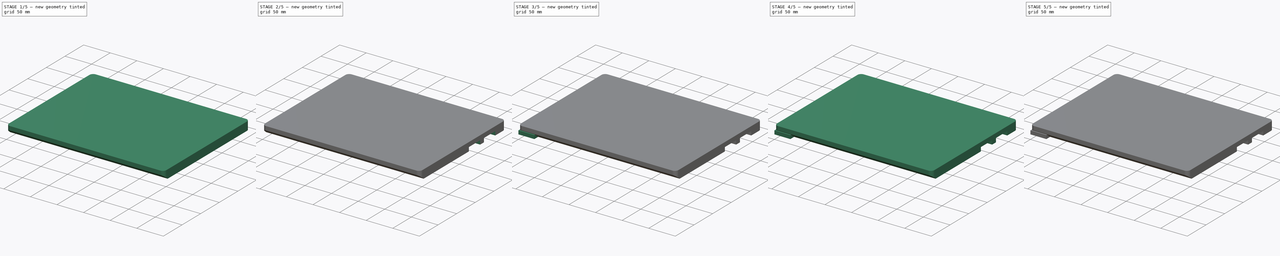
[diagram: build sequence overview — one tinted view per stage of 5, left to right]
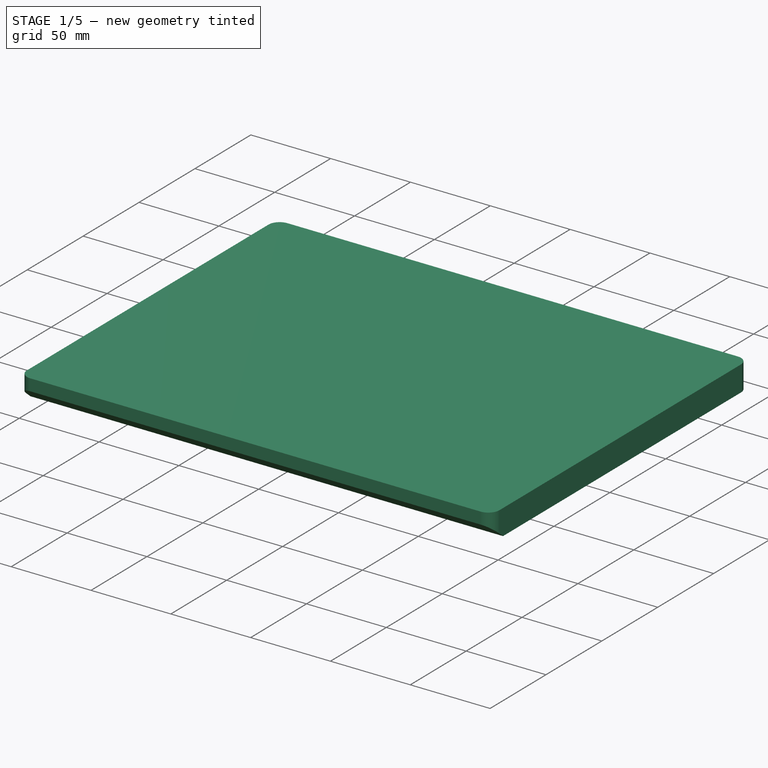
[diagram: stage 1 of 5 — iso view after this stage's code; geometry added in this stage tinted green]
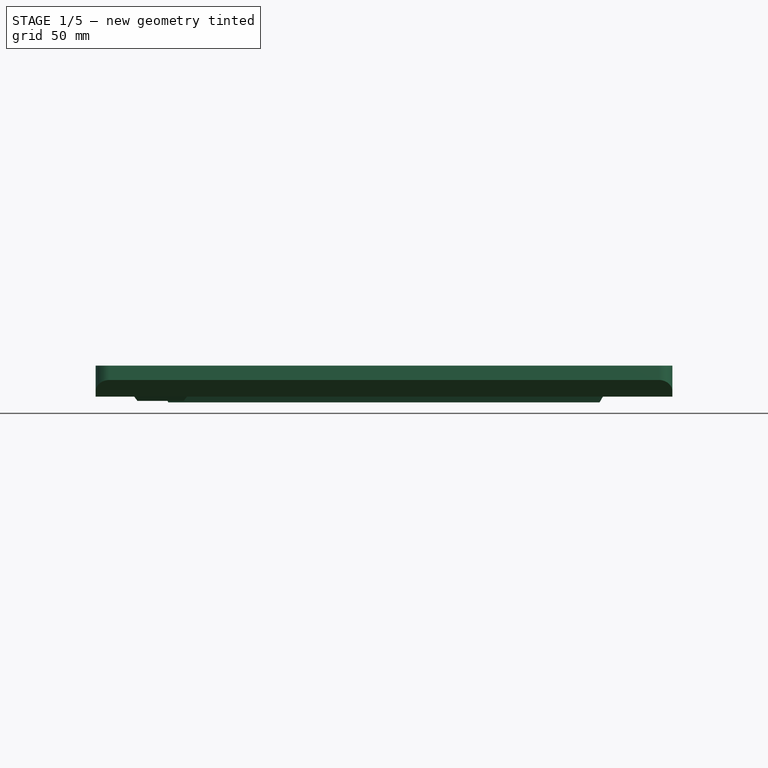
[diagram: stage 1 of 5 — front view after this stage's code; geometry added in this stage tinted green]
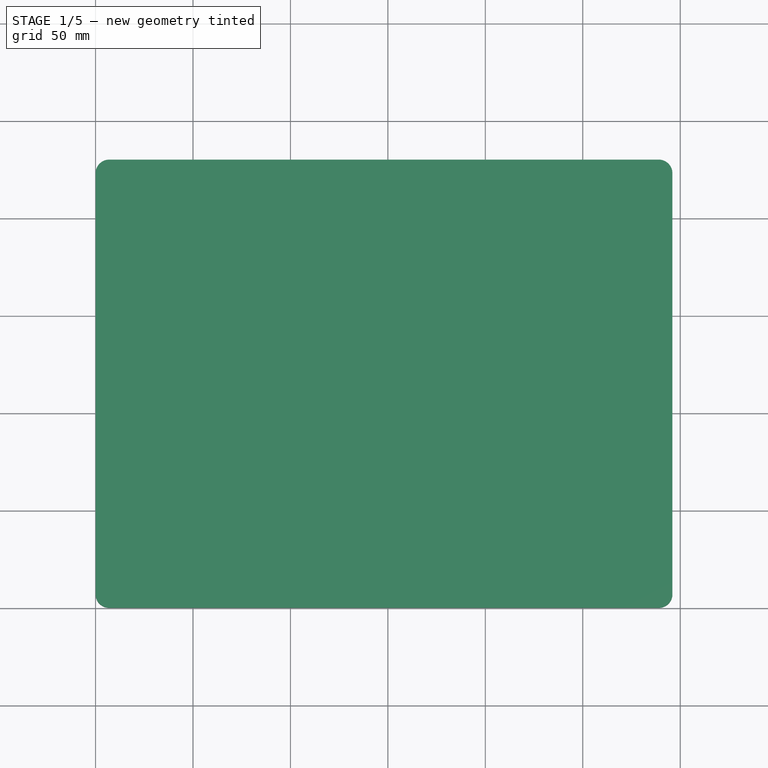
[diagram: stage 1 of 5 — top view after this stage's code; geometry added in this stage tinted green]
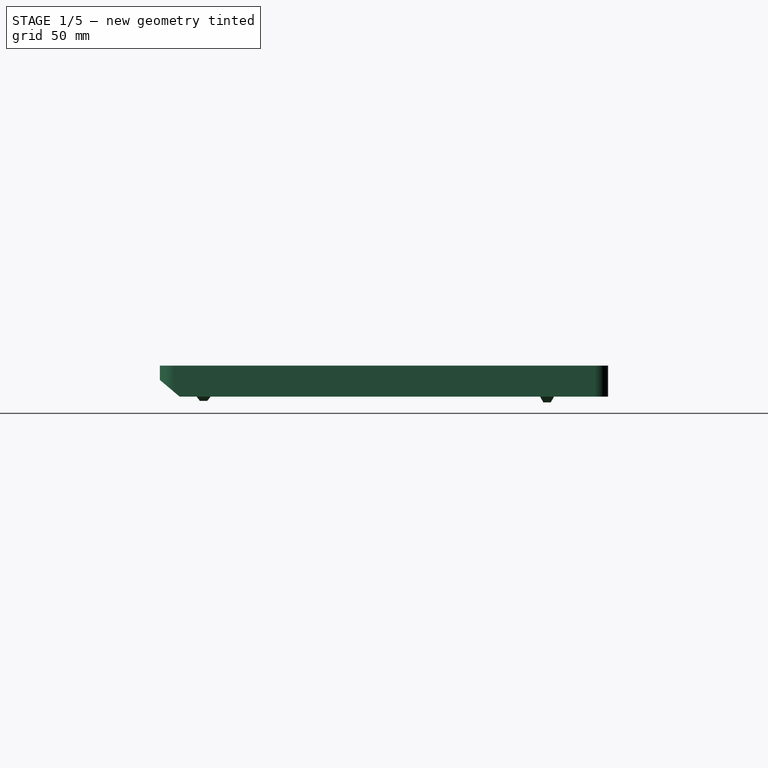
[diagram: stage 1 of 5 — right view after this stage's code; geometry added in this stage tinted green]
FCSTD DOCUMENT  (FreeCAD 0.20R29603 (Git))
Label: Framework laptop
License: Creative Commons Attribution-NonCommercial-ShareAlike
LicenseURL: http://creativecommons.org/licenses/by-nc-sa/4.0/
objects: Sketcher::SketchObject×22, PartDesign::Pad×8, PartDesign::Pocket×8, PartDesign::Body×7, PartDesign::Fillet×3, PartDesign::AdditiveLoft×3, PartDesign::LinearPattern×1
note: 74 computed .brp shape members not serialized (recipe doc carries the construction recipe); baked Part::Feature solids carry a one-line shape summary decoded from their .brp

FEATURE [Sketcher::SketchObject] Sketch
  FullyConstrained = true
  MapMode = 5
  Support = -> [XY_Plane]
  sketch-geometry (4):
    g0: LineSegment StartX=0 StartY=0 StartZ=0 EndX=296 EndY=0 EndZ=0
    g1: LineSegment StartX=296 StartY=0 StartZ=0 EndX=296 EndY=230 EndZ=0
    g2: LineSegment StartX=296 StartY=230 StartZ=0 EndX=0 EndY=230 EndZ=0
    g3: LineSegment StartX=0 StartY=230 StartZ=0 EndX=0 EndY=0 EndZ=0
  constraints (11):
    c: Coincident(g0,g1)
    c: Coincident(g1,g2)
    c: Coincident(g2,g3)
    c: Coincident(g3,g0)
    c: Horizontal(g0)
    c: Horizontal(g2)
    c: Vertical(g1)
    c: Vertical(g3)
    c: Coincident(g0,g-1)
    c: DistanceX(g0,g0) = 296  'Width'
    c: DistanceY(g1,g1) = 230  'Depth'
FEATURE [PartDesign::Pad] Pad
  Direction = (0,0,1)
  Length = 15.88
  Length2 = 10
  Profile = -> Sketch
  ReferenceAxis = -> Sketch [N_Axis]
  Type = 0
FEATURE [PartDesign::Fillet] Fillet
  Base = -> Pad [Edge5,Edge2,Edge1,Edge8]
  BaseFeature = -> Pad
  Radius = 7
  SupportTransform = false
  UseAllEdges = false
FEATURE [Sketcher::SketchObject] Sketch001
  FullyConstrained = true
  MapMode = 5
  Placement = pos=(0,0,0) rot=(0.57735,-0.57735,-0.57735;2.0944rad)
  Support = -> [Fillet]
  sketch-geometry (3):
    g0: LineSegment StartX=0 StartY=0 StartZ=0 EndX=-10.11 EndY=0 EndZ=0
    g1: LineSegment StartX=-10.11 StartY=0 StartZ=0 EndX=0 EndY=8.53 EndZ=0
    g2: LineSegment StartX=0 StartY=8.53 StartZ=0 EndX=0 EndY=0 EndZ=0
  constraints (8):
    c: Coincident(g-1,g0)
    c: PointOnObject(g0,g-1)
    c: Coincident(g0,g1)
    c: PointOnObject(g1,g-2)
    c: Coincident(g1,g2)
    c: Coincident(g2,g0)
    c: DistanceY(g2,g2) = 8.53
    c: DistanceX(g0,g0) = 10.11
FEATURE [PartDesign::Pocket] Pocket
  BaseFeature = -> Fillet
  Direction = (1,0,0)
  Length = 296
  Length2 = 5
  Profile = -> Sketch001
  ReferenceAxis = -> Sketch001 [N_Axis]
  Type = 0
FEATURE [Sketcher::SketchObject] Sketch002
  ExternalGeometry = -> [Pocket]
  FullyConstrained = true
  MapMode = 5
  Placement = pos=(0,0,0) rot=(1,0,0;3.14159rad)
  Support = -> [Pocket]
  sketch-geometry (4):
    g0: LineSegment StartX=35.67 StartY=-195.08 StartZ=0 EndX=260.33 EndY=-195.08 EndZ=0
    g1: LineSegment StartX=260.33 StartY=-195.08 StartZ=0 EndX=260.33 EndY=-202.26 EndZ=0
    g2: LineSegment StartX=260.33 StartY=-202.26 StartZ=0 EndX=35.67 EndY=-202.26 EndZ=0
    g3: LineSegment StartX=35.67 StartY=-202.26 StartZ=0 EndX=35.67 EndY=-195.08 EndZ=0
  constraints (12):
    c: Coincident(g0,g1)
    c: Coincident(g1,g2)
    c: Coincident(g2,g3)
    c: Coincident(g3,g0)
    c: Horizontal(g0)
    c: Horizontal(g2)
    c: Vertical(g1)
    c: Vertical(g3)
    c: DistanceX(g-1,g0) = 35.67
    c: DistanceX(g1,g-3) = 35.67
    c: DistanceY(g3,g3) = 7.18
    c: DistanceY(g-4,g2) = 27.74
FEATURE [Sketcher::SketchObject] Sketch003
  FullyConstrained = true
  MapMode = 5
  Placement = pos=(0,0,0) rot=(1,0,0;3.14159rad)
  Support = -> [Pocket]
  sketch-geometry (4):
    g0: LineSegment StartX=19.81 StartY=-18.83 StartZ=0 EndX=46.91 EndY=-18.83 EndZ=0
    g1: LineSegment StartX=46.91 StartY=-18.83 StartZ=0 EndX=46.91 EndY=-26.01 EndZ=0
    g2: LineSegment StartX=46.91 StartY=-26.01 StartZ=0 EndX=19.81 EndY=-26.01 EndZ=0
    g3: LineSegment StartX=19.81 StartY=-26.01 StartZ=0 EndX=19.81 EndY=-18.83 EndZ=0
  constraints (12):
    c: Coincident(g0,g1)
    c: Coincident(g1,g2)
    c: Coincident(g2,g3)
    c: Coincident(g3,g0)
    c: Horizontal(g0)
    c: Horizontal(g2)
    c: Vertical(g1)
    c: Vertical(g3)
    c: DistanceX(g2,g2) = 27.1
    c: DistanceX(g-1,g0) = 19.81
    c: DistanceY(g1,g1) = 7.18
    c: DistanceY(g0,g-1) = 18.83
FEATURE [Sketcher::SketchObject] Sketch004
  AttachmentOffset = pos=(0,0,2.21) rot=(0,0,1;0rad)
  ExternalGeometry = -> [Sketch003]
  FullyConstrained = true
  MapMode = 5
  Placement = pos=(0,0,-2.21) rot=(1,0,0;3.14159rad)
  Support = -> [Pocket]
  sketch-geometry (8):
    g0: LineSegment StartX=21.51 StartY=-20.53 StartZ=0 EndX=45.21 EndY=-20.53 EndZ=0
    g1: LineSegment StartX=45.21 StartY=-20.53 StartZ=0 EndX=45.21 EndY=-24.31 EndZ=0
    g2: LineSegment StartX=45.21 StartY=-24.31 StartZ=0 EndX=21.51 EndY=-24.31 EndZ=0
    g3: LineSegment StartX=21.51 StartY=-24.31 StartZ=0 EndX=21.51 EndY=-20.53 EndZ=0
    g4: LineSegment StartX=21.51 StartY=-20.53 StartZ=0 EndX=21.51 EndY=-18.83 EndZ=0
    g5: LineSegment StartX=21.51 StartY=-20.53 StartZ=0 EndX=19.81 EndY=-20.53 EndZ=0
    g6: LineSegment StartX=21.51 StartY=-24.31 StartZ=0 EndX=21.51 EndY=-26.01 EndZ=0
    g7: LineSegment StartX=45.21 StartY=-24.31 StartZ=0 EndX=46.91 EndY=-24.31 EndZ=0
  constraints (24):
    c: Coincident(g0,g1)
    c: Coincident(g1,g2)
    c: Coincident(g2,g3)
    c: Coincident(g3,g0)
    c: Horizontal(g0)
    c: Horizontal(g2)
    c: Vertical(g1)
    c: Vertical(g3)
    c: Coincident(g4,g0)
    c: PointOnObject(g4,g-4)
    c: Vertical(g4)
    c: Coincident(g5,g0)
    c: PointOnObject(g5,g-3)
    c: Horizontal(g5)
    c: Coincident(g6,g2)
    c: PointOnObject(g6,g-6)
    c: Vertical(g6)
    c: Coincident(g7,g1)
    c: PointOnObject(g7,g-5)
    c: Horizontal(g7)
    c: DistanceY(g6,g6) = 1.7
    c: Equal(g6,g5)
    c: Equal(g5,g4)
    c: Equal(g4,g7)
FEATURE [PartDesign::AdditiveLoft] AdditiveLoft  label="Front left foot"
  BaseFeature = -> Pocket
  Closed = false
  Profile = -> Sketch003
  Ruled = false
  Sections = -> [Sketch004]
FEATURE [Sketcher::SketchObject] Sketch005
  AttachmentOffset = pos=(0,0,2.95) rot=(0,0,1;0rad)
  ExternalGeometry = -> [Sketch002]
  FullyConstrained = true
  MapMode = 5
  Placement = pos=(0,0,-2.95) rot=(1,0,0;3.14159rad)
  Support = -> [AdditiveLoft]
  sketch-geometry (8):
    g0: LineSegment StartX=37.37 StartY=-196.78 StartZ=0 EndX=258.63 EndY=-196.78 EndZ=0
    g1: LineSegment StartX=258.63 StartY=-196.78 StartZ=0 EndX=258.63 EndY=-200.56 EndZ=0
    g2: LineSegment StartX=258.63 StartY=-200.56 StartZ=0 EndX=37.37 EndY=-200.56 EndZ=0
    g3: LineSegment StartX=37.37 StartY=-200.56 StartZ=0 EndX=37.37 EndY=-196.78 EndZ=0
    g4: LineSegment StartX=37.37 StartY=-196.78 StartZ=0 EndX=37.37 EndY=-195.08 EndZ=0
    g5: LineSegment StartX=37.37 StartY=-196.78 StartZ=0 EndX=35.67 EndY=-196.78 EndZ=0
    g6: LineSegment StartX=37.37 StartY=-200.56 StartZ=0 EndX=37.37 EndY=-202.26 EndZ=0
    g7: LineSegment StartX=258.63 StartY=-200.56 StartZ=0 EndX=260.33 EndY=-200.56 EndZ=0
  constraints (24):
    c: Coincident(g0,g1)
    c: Coincident(g1,g2)
    c: Coincident(g2,g3)
    c: Coincident(g3,g0)
    c: Horizontal(g0)
    c: Horizontal(g2)
    c: Vertical(g1)
    c: Vertical(g3)
    c: Coincident(g4,g0)
    c: PointOnObject(g4,g-4)
    c: Vertical(g4)
    c: Coincident(g5,g0)
    c: PointOnObject(g5,g-3)
    c: Horizontal(g5)
    c: Coincident(g6,g2)
    c: PointOnObject(g6,g-5)
    c: Vertical(g6)
    c: Coincident(g7,g1)
    c: PointOnObject(g7,g-6)
    c: Horizontal(g7)
    c: Equal(g6,g5)
    c: Equal(g5,g4)
    c: Equal(g7,g4)
    c: DistanceX(g5,g5) = 1.7
FEATURE [PartDesign::AdditiveLoft] AdditiveLoft001  label="Back foot"
  BaseFeature = -> AdditiveLoft
  Closed = false
  Profile = -> Sketch002
  Ruled = false
  Sections = -> [Sketch005]
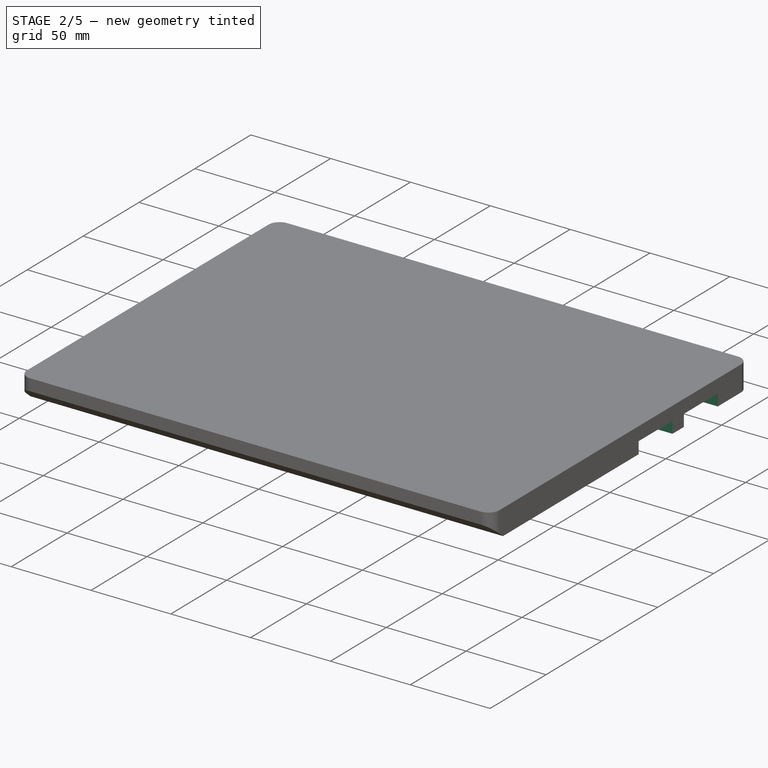
[diagram: stage 2 of 5 — iso view after this stage's code; geometry added in this stage tinted green]
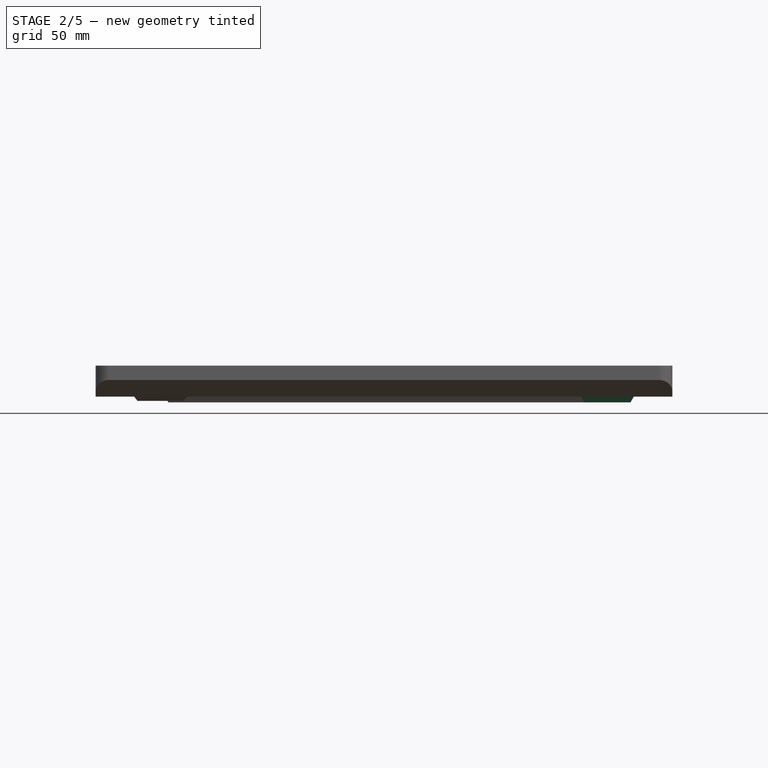
[diagram: stage 2 of 5 — front view after this stage's code; geometry added in this stage tinted green]
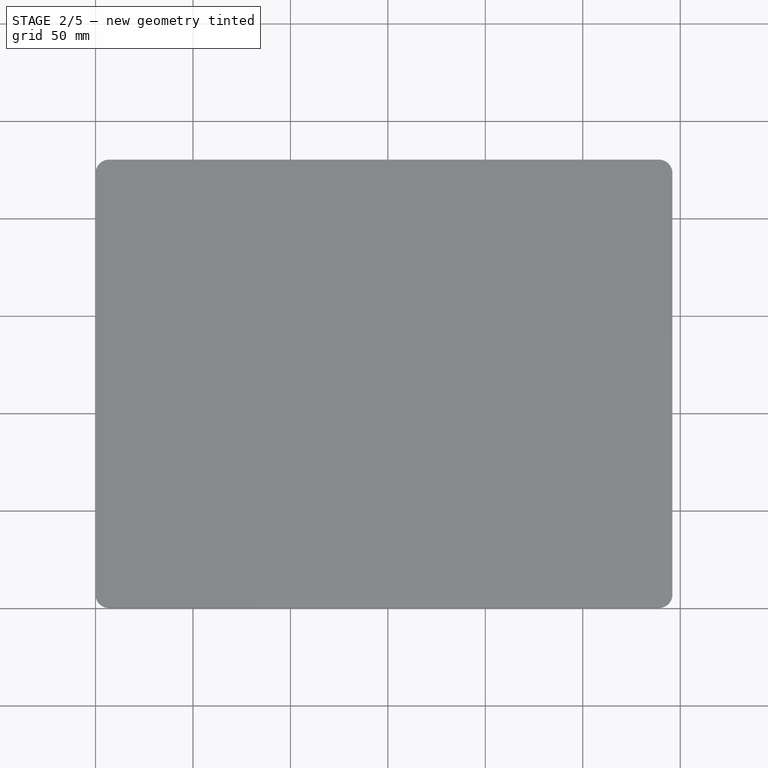
[diagram: stage 2 of 5 — top view after this stage's code; geometry added in this stage tinted green]
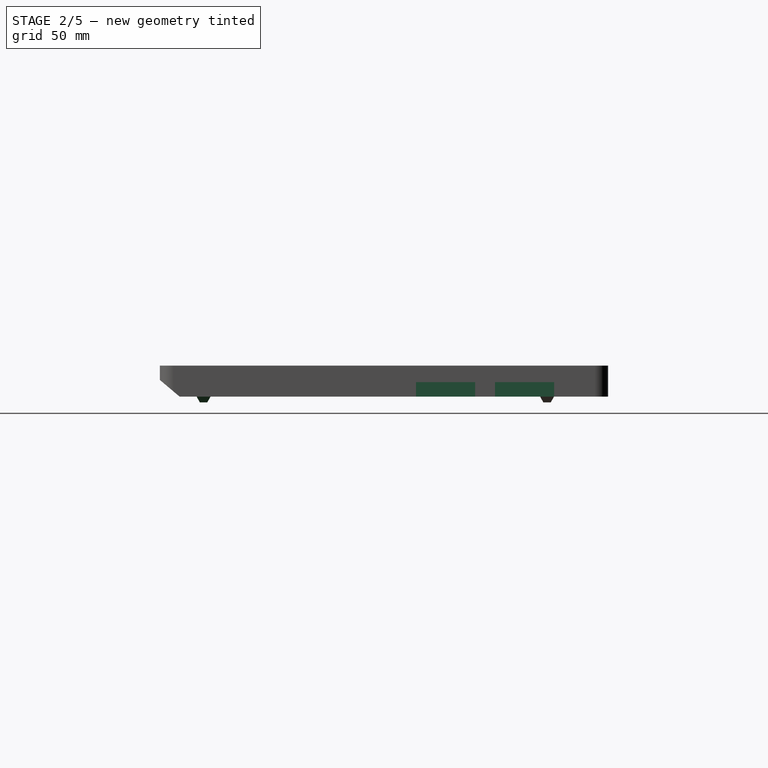
[diagram: stage 2 of 5 — right view after this stage's code; geometry added in this stage tinted green]
FEATURE [Sketcher::SketchObject] Sketch006
  ExternalGeometry = -> [AdditiveLoft001]
  FullyConstrained = true
  MapMode = 5
  Placement = pos=(0,0,0) rot=(1,0,0;3.14159rad)
  Support = -> [AdditiveLoft001]
  sketch-geometry (4):
    g0: LineSegment StartX=249.09 StartY=-18.83 StartZ=0 EndX=276.19 EndY=-18.83 EndZ=0
    g1: LineSegment StartX=276.19 StartY=-18.83 StartZ=0 EndX=276.19 EndY=-26.01 EndZ=0
    g2: LineSegment StartX=276.19 StartY=-26.01 StartZ=0 EndX=249.09 EndY=-26.01 EndZ=0
    g3: LineSegment StartX=249.09 StartY=-26.01 StartZ=0 EndX=249.09 EndY=-18.83 EndZ=0
  constraints (12):
    c: Coincident(g0,g1)
    c: Coincident(g1,g2)
    c: Coincident(g2,g3)
    c: Coincident(g3,g0)
    c: Horizontal(g0)
    c: Horizontal(g2)
    c: Vertical(g1)
    c: Vertical(g3)
    c: DistanceX(g0,g-3) = 19.81
    c: DistanceX(g2,g2) = 27.1
    c: DistanceY(g0,g-1) = 18.83
    c: DistanceY(g3,g3) = 7.18
FEATURE [Sketcher::SketchObject] Sketch007
  AttachmentOffset = pos=(0,0,2.95) rot=(0,0,1;0rad)
  ExternalGeometry = -> [Sketch006]
  FullyConstrained = true
  MapMode = 5
  Placement = pos=(0,0,-2.95) rot=(1,0,0;3.14159rad)
  Support = -> [AdditiveLoft001]
  sketch-geometry (8):
    g0: LineSegment StartX=250.79 StartY=-20.53 StartZ=0 EndX=274.49 EndY=-20.53 EndZ=0
    g1: LineSegment StartX=274.49 StartY=-20.53 StartZ=0 EndX=274.49 EndY=-24.31 EndZ=0
    g2: LineSegment StartX=274.49 StartY=-24.31 StartZ=0 EndX=250.79 EndY=-24.31 EndZ=0
    g3: LineSegment StartX=250.79 StartY=-24.31 StartZ=0 EndX=250.79 EndY=-20.53 EndZ=0
    g4: LineSegment StartX=250.79 StartY=-20.53 StartZ=0 EndX=249.09 EndY=-20.53 EndZ=0
    g5: LineSegment StartX=250.79 StartY=-20.53 StartZ=0 EndX=250.79 EndY=-18.83 EndZ=0
    g6: LineSegment StartX=250.79 StartY=-24.31 StartZ=0 EndX=250.79 EndY=-26.01 EndZ=0
    g7: LineSegment StartX=274.49 StartY=-24.31 StartZ=0 EndX=276.19 EndY=-24.31 EndZ=0
  constraints (24):
    c: Coincident(g0,g1)
    c: Coincident(g1,g2)
    c: Coincident(g2,g3)
    c: Coincident(g3,g0)
    c: Horizontal(g0)
    c: Horizontal(g2)
    c: Vertical(g1)
    c: Vertical(g3)
    c: Coincident(g4,g0)
    c: PointOnObject(g4,g-3)
    c: Horizontal(g4)
    c: Coincident(g5,g0)
    c: PointOnObject(g5,g-4)
    c: Vertical(g5)
    c: Coincident(g6,g2)
    c: PointOnObject(g6,g-6)
    c: Vertical(g6)
    c: Coincident(g7,g1)
    c: PointOnObject(g7,g-5)
    c: Horizontal(g7)
    c: Equal(g5,g4)
    c: Equal(g4,g6)
    c: Equal(g6,g7)
    c: DistanceY(g5,g5) = 1.7
FEATURE [PartDesign::AdditiveLoft] AdditiveLoft002  label="Front right foot"
  BaseFeature = -> AdditiveLoft001
  Closed = false
  Profile = -> Sketch006
  Ruled = false
  Sections = -> [Sketch007]
FEATURE [PartDesign::Body] Body002  label="Bezel"
  Group = -> [Sketch009,Pad002,Fillet002]
  Origin = -> Origin002
  Tip = -> Fillet002
FEATURE [Sketcher::SketchObject] Sketch010
  ExternalGeometry = -> [AdditiveLoft002]
  FullyConstrained = true
  MapMode = 5
  Placement = pos=(0,0,0) rot=(1,0,0;3.14159rad)
  Support = -> [AdditiveLoft002]
  sketch-geometry (9):
    g0: LineSegment StartX=64.56 StartY=-153.62 StartZ=0 EndX=65.45 EndY=-153.62 EndZ=0
    g1: LineSegment StartX=65.45 StartY=-153.62 StartZ=0 EndX=65.45 EndY=-166.08 EndZ=0
    g2: LineSegment StartX=65.45 StartY=-166.08 StartZ=0 EndX=64.56 EndY=-166.08 EndZ=0
    g3: LineSegment StartX=64.56 StartY=-166.08 StartZ=0 EndX=64.56 EndY=-153.62 EndZ=0
    g4: LineSegment StartX=65.45 StartY=-166.08 StartZ=0 EndX=65.45 EndY=-168.08 EndZ=0
    g5: LineSegment StartX=65.45 StartY=-168.08 StartZ=0 EndX=64.56 EndY=-168.08 EndZ=0
    g6: LineSegment StartX=64.56 StartY=-168.08 StartZ=0 EndX=64.56 EndY=-180.54 EndZ=0
    g7: LineSegment StartX=64.56 StartY=-180.54 StartZ=0 EndX=65.45 EndY=-180.54 EndZ=0
    g8: LineSegment StartX=65.45 StartY=-180.54 StartZ=0 EndX=65.45 EndY=-168.08 EndZ=0
  constraints (26):
    c: Coincident(g0,g1)
    c: Coincident(g1,g2)
    c: Coincident(g2,g3)
    c: Coincident(g3,g0)
    c: Horizontal(g0)
    c: Horizontal(g2)
    c: Vertical(g1)
    c: Vertical(g3)
    c: DistanceX(g-1,g0) = 64.56
    c: DistanceX(g0,g0) = 0.89
    c: DistanceY(g3,g3) = 12.46
    c: DistanceY(g-3,g0) = 76.38
    c: Coincident(g4,g1)
    c: Vertical(g4)
    c: DistanceY(g4,g4) = 2
    c: Coincident(g5,g6)
    c: Coincident(g6,g7)
    c: Coincident(g7,g8)
    c: Coincident(g8,g5)
    c: Horizontal(g5)
    c: Horizontal(g7)
    c: Vertical(g6)
    c: Vertical(g8)
    c: Coincident(g5,g4)
    c: Equal(g5,g0)
    c: Equal(g8,g3)
FEATURE [PartDesign::Pocket] Pocket001
  BaseFeature = -> AdditiveLoft002
  Direction = (0,0,1)
  Length = 3
  Length2 = 5
  Profile = -> Sketch010
  ReferenceAxis = -> Sketch010 [N_Axis]
  Type = 0
FEATURE [PartDesign::LinearPattern] LinearPattern  label="Grille"
  BaseFeature = -> Pocket001
  Direction = -> Sketch010 [H_Axis]
  Length = 166
  Occurrences = 70
  Originals = -> [Pocket001]
FEATURE [Sketcher::SketchObject] Sketch012
  ExternalGeometry = -> [LinearPattern]
  FullyConstrained = true
  MapMode = 5
  Placement = pos=(0,0,0) rot=(1,0,0;3.14159rad)
  Support = -> [LinearPattern]
  sketch-geometry (19):
    g0: LineSegment StartX=0 StartY=-202.28 StartZ=0 EndX=31.82 EndY=-202.28 EndZ=0
    g1: LineSegment StartX=31.82 StartY=-202.28 StartZ=0 EndX=31.82 EndY=-171.95 EndZ=0
    g2: LineSegment StartX=31.82 StartY=-171.95 StartZ=0 EndX=0 EndY=-171.95 EndZ=0
    g3: LineSegment StartX=0 StartY=-171.95 StartZ=0 EndX=0 EndY=-202.28 EndZ=0
    g4: LineSegment StartX=0 StartY=-171.95 StartZ=0 EndX=0 EndY=-161.73 EndZ=0
    g5: LineSegment StartX=0 StartY=-161.73 StartZ=0 EndX=31.82 EndY=-161.73 EndZ=0
    g6: LineSegment StartX=31.82 StartY=-161.73 StartZ=0 EndX=31.82 EndY=-131.4 EndZ=0
    g7: LineSegment StartX=31.82 StartY=-131.4 StartZ=0 EndX=0 EndY=-131.4 EndZ=0
    g8: LineSegment StartX=0 StartY=-131.4 StartZ=0 EndX=0 EndY=-161.73 EndZ=0
    g9: LineSegment StartX=31.82 StartY=-202.28 StartZ=0 EndX=264.18 EndY=-202.28 EndZ=0
    g10: LineSegment StartX=264.18 StartY=-202.28 StartZ=0 EndX=296 EndY=-202.28 EndZ=0
    g11: LineSegment StartX=296 StartY=-202.28 StartZ=0 EndX=296 EndY=-171.95 EndZ=0
    g12: LineSegment StartX=296 StartY=-171.95 StartZ=0 EndX=264.18 EndY=-171.95 EndZ=0
    g13: LineSegment StartX=264.18 StartY=-171.95 StartZ=0 EndX=264.18 EndY=-202.28 EndZ=0
    g14: LineSegment StartX=31.82 StartY=-131.4 StartZ=0 EndX=264.18 EndY=-131.4 EndZ=0
    g15: LineSegment StartX=264.18 StartY=-131.4 StartZ=0 EndX=296 EndY=-131.4 EndZ=0
    g16: LineSegment StartX=296 StartY=-131.4 StartZ=0 EndX=296 EndY=-161.73 EndZ=0
    g17: LineSegment StartX=296 StartY=-161.73 StartZ=0 EndX=264.18 EndY=-161.73 EndZ=0
    g18: LineSegment StartX=264.18 StartY=-161.73 StartZ=0 EndX=264.18 EndY=-131.4 EndZ=0
  constraints (54):
    c: Coincident(g0,g1)
    c: Coincident(g1,g2)
    c: Coincident(g2,g3)
    c: Coincident(g3,g0)
    c: Horizontal(g0)
    c: Horizontal(g2)
    c: Vertical(g1)
    c: Vertical(g3)
    c: PointOnObject(g0,g-2)
    c: DistanceY(g-3,g0) = 27.72
    c: DistanceY(g3,g3) = 30.33
    c: DistanceX(g0,g0) = 31.82
    c: Coincident(g4,g2)
    c: PointOnObject(g4,g-2)
    c: DistanceY(g2,g4) = 10.22
    c: Coincident(g5,g6)
    c: Coincident(g6,g7)
    c: Coincident(g7,g8)
    c: Coincident(g8,g5)
    c: Horizontal(g5)
    c: Horizontal(g7)
    c: Vertical(g6)
    c: Vertical(g8)
    c: Coincident(g5,g4)
    c: Equal(g0,g5)
    c: Equal(g3,g8)
    c: Coincident(g9,g0)
    c: Horizontal(g9)
    c: Coincident(g10,g11)
    c: Coincident(g11,g12)
    c: Coincident(g12,g13)
    c: Coincident(g13,g10)
    c: Horizontal(g10)
    c: Horizontal(g12)
    c: Vertical(g11)
    c: Vertical(g13)
    c: Coincident(g10,g9)
    c: Equal(g10,g0)
    c: Equal(g13,g3)
    c: PointOnObject(g10,g-4)
    c: Coincident(g14,g6)
    c: Horizontal(g14)
    c: Coincident(g15,g16)
    c: Coincident(g16,g17)
    c: Coincident(g17,g18)
    c: Coincident(g18,g15)
    c: Horizontal(g15)
    c: Horizontal(g17)
    c: Vertical(g16)
    c: Vertical(g18)
    c: Coincident(g15,g14)
    c: PointOnObject(g16,g-4)
    c: Equal(g17,g0)
    c: Equal(g18,g3)
FEATURE [PartDesign::Pocket] Pocket002  label="Expansion card slots"
  BaseFeature = -> LinearPattern
  Direction = (0,0,1)
  Length = 7.4
  Length2 = 5
  Profile = -> Sketch012
  ReferenceAxis = -> Sketch012 [N_Axis]
  Type = 0
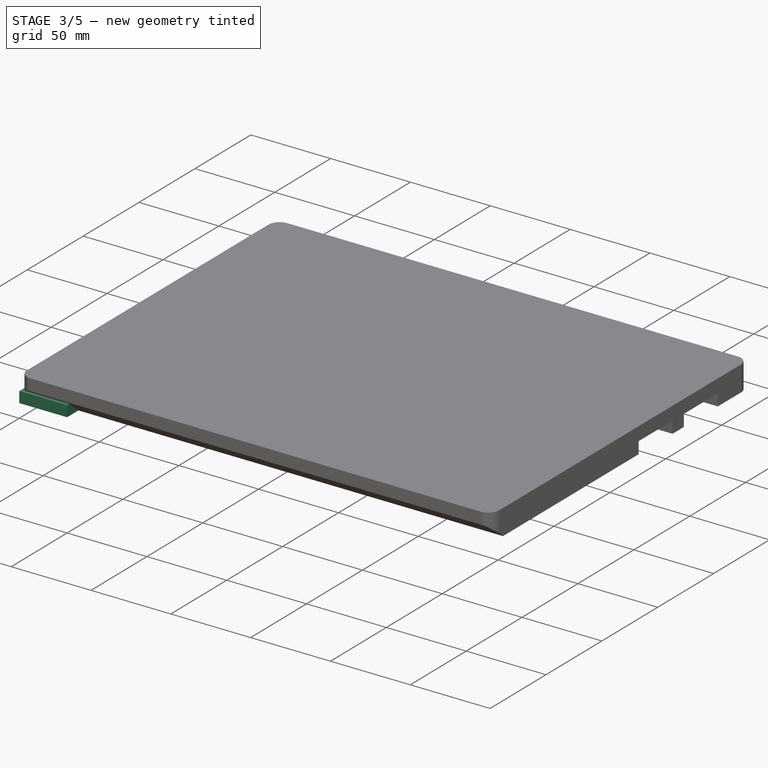
[diagram: stage 3 of 5 — iso view after this stage's code; geometry added in this stage tinted green]
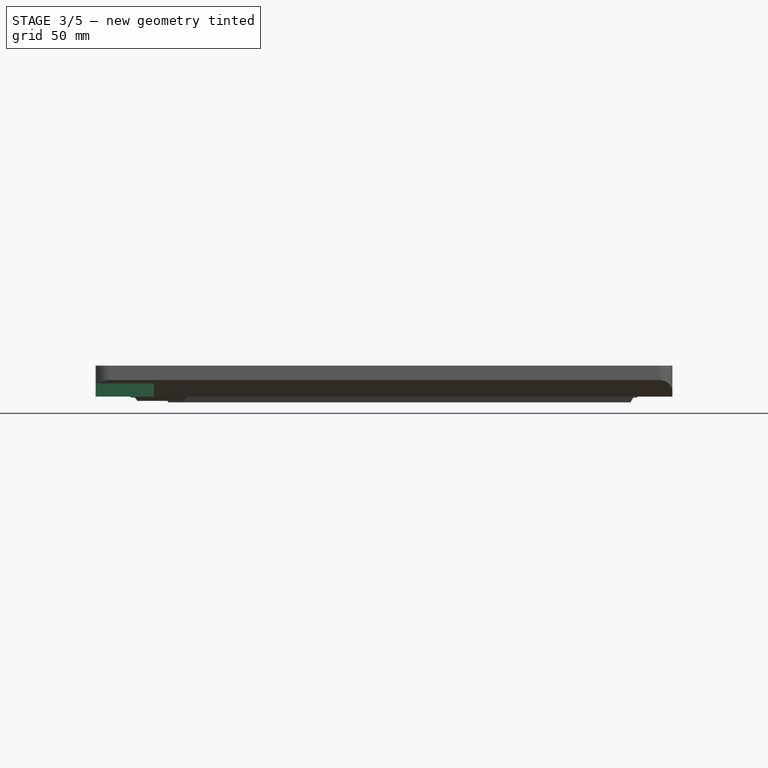
[diagram: stage 3 of 5 — front view after this stage's code; geometry added in this stage tinted green]
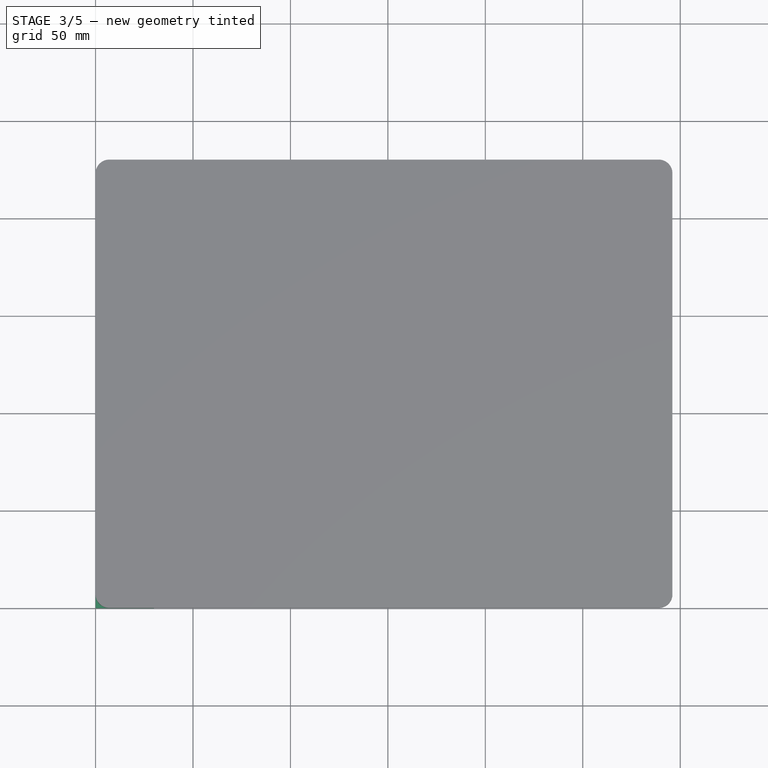
[diagram: stage 3 of 5 — top view after this stage's code; geometry added in this stage tinted green]
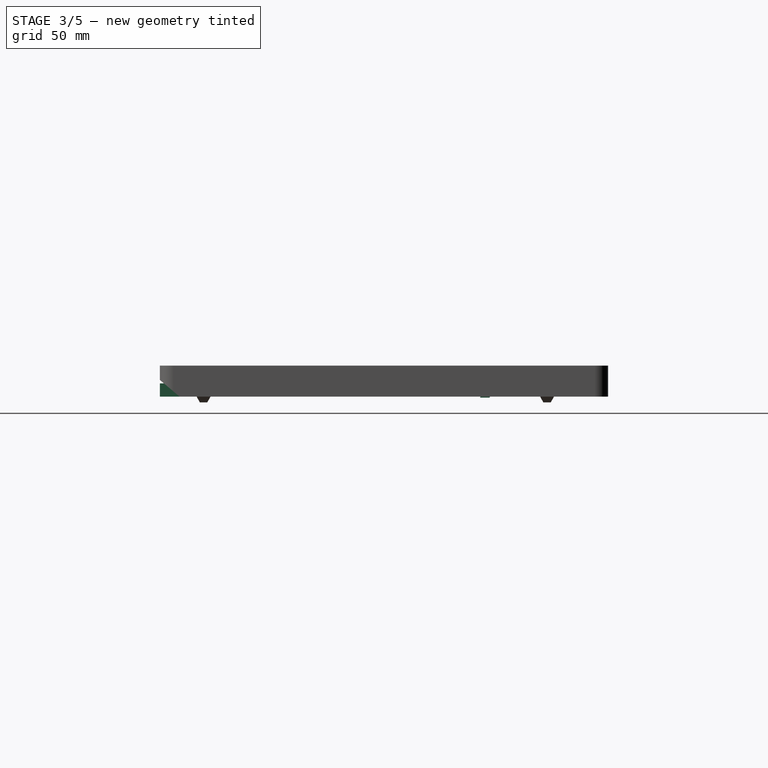
[diagram: stage 3 of 5 — right view after this stage's code; geometry added in this stage tinted green]
FEATURE [PartDesign::Body] Body004  label="Expansion card 2"
  Group = -> [Sketch015,Pad004,Sketch016,Pocket004]
  Origin = -> Origin004
  Placement = pos=(0,131.55,6.8) rot=(0.707107,0.707107,0;3.14159rad)
  Tip = -> Pocket004
FEATURE [Sketcher::SketchObject] Sketch017
  FullyConstrained = true
  MapMode = 5
  Support = -> [XY_Plane005]
  sketch-geometry (4):
    g0: LineSegment StartX=0 StartY=0 StartZ=0 EndX=30 EndY=0 EndZ=0
    g1: LineSegment StartX=30 StartY=0 StartZ=0 EndX=30 EndY=32 EndZ=0
    g2: LineSegment StartX=30 StartY=32 StartZ=0 EndX=0 EndY=32 EndZ=0
    g3: LineSegment StartX=0 StartY=32 StartZ=0 EndX=0 EndY=0 EndZ=0
  constraints (11):
    c: Coincident(g0,g1)
    c: Coincident(g1,g2)
    c: Coincident(g2,g3)
    c: Coincident(g3,g0)
    c: Horizontal(g0)
    c: Horizontal(g2)
    c: Vertical(g1)
    c: Vertical(g3)
    c: Coincident(g0,g-1)
    c: DistanceX(g0,g0) = 30
    c: DistanceY(g1,g1) = 32
FEATURE [PartDesign::Pad] Pad005
  Direction = (0,0,1)
  Length = 6.8
  Length2 = 10
  Profile = -> Sketch017
  ReferenceAxis = -> Sketch017 [N_Axis]
  Type = 0
FEATURE [PartDesign::Body] Body005  label="Expansion card 3"
  Group = -> [Sketch017,Pad005,Sketch018,Pocket005]
  Origin = -> Origin005
  Placement = pos=(296,202.14,6.8) rot=(0.707107,-0.707107,0;3.14159rad)
  Tip = -> Pocket005
FEATURE [Sketcher::SketchObject] Sketch019
  FullyConstrained = true
  MapMode = 5
  Support = -> [XY_Plane006]
  sketch-geometry (4):
    g0: LineSegment StartX=0 StartY=0 StartZ=0 EndX=30 EndY=0 EndZ=0
    g1: LineSegment StartX=30 StartY=0 StartZ=0 EndX=30 EndY=32 EndZ=0
    g2: LineSegment StartX=30 StartY=32 StartZ=0 EndX=0 EndY=32 EndZ=0
    g3: LineSegment StartX=0 StartY=32 StartZ=0 EndX=0 EndY=0 EndZ=0
  constraints (11):
    c: Coincident(g0,g1)
    c: Coincident(g1,g2)
    c: Coincident(g2,g3)
    c: Coincident(g3,g0)
    c: Horizontal(g0)
    c: Horizontal(g2)
    c: Vertical(g1)
    c: Vertical(g3)
    c: Coincident(g0,g-1)
    c: DistanceX(g0,g0) = 30
    c: DistanceY(g1,g1) = 32
FEATURE [PartDesign::Pad] Pad006
  Direction = (0,0,1)
  Length = 6.8
  Length2 = 10
  Profile = -> Sketch019
  ReferenceAxis = -> Sketch019 [N_Axis]
  Type = 0
FEATURE [Sketcher::SketchObject] Sketch020
  ExternalGeometry = -> [Pad006]
  FullyConstrained = true
  MapMode = 5
  Placement = pos=(0,0,6.8) rot=(0,0,1;0rad)
  Support = -> [Pad006]
  sketch-geometry (4):
    g0: LineSegment StartX=0 StartY=28.5 StartZ=0 EndX=30 EndY=28.5 EndZ=0
    g1: LineSegment StartX=0 StartY=28.5 StartZ=0 EndX=0 EndY=32 EndZ=0
    g2: LineSegment StartX=30 StartY=32 StartZ=0 EndX=30 EndY=28.5 EndZ=0
    g3: LineSegment StartX=0 StartY=32 StartZ=0 EndX=30 EndY=32 EndZ=0
  constraints (10):
    c: PointOnObject(g0,g-2)
    c: PointOnObject(g0,g-3)
    c: Horizontal(g0)
    c: DistanceY(g0,g-4) = 3.5
    c: Coincident(g1,g0)
    c: Coincident(g1,g-4)
    c: Coincident(g2,g-4)
    c: Coincident(g2,g0)
    c: Coincident(g3,g1)
    c: Coincident(g3,g2)
FEATURE [PartDesign::Pocket] Pocket006
  BaseFeature = -> Pad006
  Direction = (0,0,-1)
  Length = 0.6
  Length2 = 5
  Profile = -> Sketch020
  ReferenceAxis = -> Sketch020 [N_Axis]
  Type = 0
FEATURE [PartDesign::Body] Body006  label="Expansion card 4"
  Group = -> [Sketch019,Pad006,Sketch020,Pocket006]
  Origin = -> Origin006
  Placement = pos=(296,161.55,6.8) rot=(0.707107,-0.707107,0;3.14159rad)
  Tip = -> Pocket006
FEATURE [Sketcher::SketchObject] Sketch021
  ExternalGeometry = -> [Pocket002]
  FullyConstrained = true
  MapMode = 5
  Placement = pos=(0,0,0) rot=(1,0,0;3.14159rad)
  Support = -> [Pocket002]
  sketch-geometry (8):
    g0: LineSegment StartX=17.35 StartY=-163.715 StartZ=0 EndX=30.18 EndY=-163.715 EndZ=0
    g1: LineSegment StartX=30.18 StartY=-163.715 StartZ=0 EndX=30.18 EndY=-169.965 EndZ=0
    g2: LineSegment StartX=30.18 StartY=-169.965 StartZ=0 EndX=17.35 EndY=-169.965 EndZ=0
    g3: LineSegment StartX=17.35 StartY=-169.965 StartZ=0 EndX=17.35 EndY=-163.715 EndZ=0
    g4: LineSegment StartX=265.82 StartY=-163.715 StartZ=0 EndX=278.65 EndY=-163.715 EndZ=0
    g5: LineSegment StartX=278.65 StartY=-163.715 StartZ=0 EndX=278.65 EndY=-169.965 EndZ=0
    g6: LineSegment StartX=278.65 StartY=-169.965 StartZ=0 EndX=265.82 EndY=-169.965 EndZ=0
    g7: LineSegment StartX=265.82 StartY=-169.965 StartZ=0 EndX=265.82 EndY=-163.715 EndZ=0
  constraints (26):
    c: Coincident(g0,g1)
    c: Coincident(g1,g2)
    c: Coincident(g2,g3)
    c: Coincident(g3,g0)
    c: Horizontal(g0)
    c: Horizontal(g2)
    c: Vertical(g1)
    c: Vertical(g3)
    c: DistanceX(g-1,g0) = 17.35
    c: Coincident(g4,g5)
    c: Coincident(g5,g6)
    c: Coincident(g6,g7)
    c: Coincident(g7,g4)
    c: Horizontal(g4)
    c: Horizontal(g6)
    c: Vertical(g5)
    c: Vertical(g7)
    c: DistanceX(g4,g-3) = 17.35
    c: DistanceX(g2,g2) = 12.83
    c: Equal(g2,g6)
    c: DistanceY(g1,g0) = 6.25
    c: Equal(g1,g7)
    c: DistanceY(g-4,g1) = 1.985
    c: DistanceY(g-5,g6) = 1.985
    c: DistanceY(g4,g-6) = 1.985
    c: DistanceY(g0,g-7) = 1.985
FEATURE [PartDesign::Pocket] Pocket007
  BaseFeature = -> Pocket002
  Direction = (0,0,1)
  Length = 6.8
  Length2 = 5
  Profile = -> Sketch021
  ReferenceAxis = -> Sketch021 [N_Axis]
  Type = 0
FEATURE [Sketcher::SketchObject] Sketch022
  ExternalGeometry = -> [Pocket007]
  FullyConstrained = true
  MapMode = 5
  Placement = pos=(0,0,6.8) rot=(1,0,0;3.14159rad)
  Support = -> [Pocket007]
  sketch-geometry (14):
    g0: LineSegment StartX=18.02 StartY=-164.385 StartZ=0 EndX=29.51 EndY=-164.385 EndZ=0
    g1: LineSegment StartX=29.51 StartY=-164.385 StartZ=0 EndX=29.51 EndY=-169.295 EndZ=0
    g2: LineSegment StartX=29.51 StartY=-169.295 StartZ=0 EndX=18.02 EndY=-169.295 EndZ=0
    g3: LineSegment StartX=18.02 StartY=-169.295 StartZ=0 EndX=18.02 EndY=-164.385 EndZ=0
    g4: LineSegment StartX=29.51 StartY=-164.385 StartZ=0 EndX=29.51 EndY=-163.715 EndZ=0
    g5: LineSegment StartX=29.51 StartY=-164.385 StartZ=0 EndX=30.18 EndY=-164.385 EndZ=0
    g6: LineSegment StartX=18.02 StartY=-169.295 StartZ=0 EndX=18.02 EndY=-169.965 EndZ=0
    g7: LineSegment StartX=18.02 StartY=-169.295 StartZ=0 EndX=17.35 EndY=-169.295 EndZ=0
    g8: LineSegment StartX=266.49 StartY=-164.385 StartZ=0 EndX=277.98 EndY=-164.385 EndZ=0
    g9: LineSegment StartX=277.98 StartY=-164.385 StartZ=0 EndX=277.98 EndY=-169.295 EndZ=0
    g10: LineSegment StartX=277.98 StartY=-169.295 StartZ=0 EndX=266.49 EndY=-169.295 EndZ=0
    g11: LineSegment StartX=266.49 StartY=-169.295 StartZ=0 EndX=266.49 EndY=-164.385 EndZ=0
    g12: LineSegment StartX=277.98 StartY=-164.385 StartZ=0 EndX=277.98 EndY=-163.715 EndZ=0
    g13: LineSegment StartX=277.98 StartY=-164.385 StartZ=0 EndX=278.65 EndY=-164.385 EndZ=0
  constraints (42):
    c: Coincident(g0,g1)
    c: Coincident(g1,g2)
    c: Coincident(g2,g3)
    c: Coincident(g3,g0)
    c: Horizontal(g0)
    c: Horizontal(g2)
    c: Vertical(g1)
    c: Vertical(g3)
    c: Coincident(g4,g0)
    c: PointOnObject(g4,g-3)
    c: Vertical(g4)
    c: Coincident(g5,g0)
    c: PointOnObject(g5,g-4)
    c: Horizontal(g5)
    c: DistanceX(g5,g5) = 0.67
    c: Equal(g5,g4)
    c: Coincident(g6,g2)
    c: PointOnObject(g6,g-5)
    c: Vertical(g6)
    c: Coincident(g7,g2)
    c: PointOnObject(g7,g-6)
    c: Horizontal(g7)
    c: Coincident(g8,g9)
    c: Coincident(g9,g10)
    c: Coincident(g10,g11)
    c: Coincident(g11,g8)
    c: Horizontal(g8)
    c: Horizontal(g10)
    c: Vertical(g9)
    c: Vertical(g11)
    c: Equal(g8,g0)
    c: Equal(g1,g11)
    c: Coincident(g12,g8)
    c: PointOnObject(g12,g-7)
    c: Vertical(g12)
    c: Coincident(g13,g8)
    c: PointOnObject(g13,g-8)
    c: Horizontal(g13)
    c: Equal(g5,g6)
    c: Equal(g6,g7)
    c: Equal(g7,g13)
    c: Equal(g13,g12)
FEATURE [PartDesign::Pad] Pad007  label="Expansion card release buttons"
  BaseFeature = -> Pocket007
  Direction = (0,0,-1)
  Length = 7.31
  Length2 = 10
  Profile = -> Sketch022
  ReferenceAxis = -> Sketch022 [N_Axis]
  Type = 0
  expr: Length = 6.8 + 0.51
FEATURE [PartDesign::Body] Body
  Group = -> [Sketch,Pad,Fillet,Sketch001,Pocket,Sketch002,Sketch003,Sketch004,AdditiveLoft,Sketch005,AdditiveLoft001,Sketch006,Sketch007,AdditiveLoft002,Sketch010,Pocket001,LinearPattern,Sketch012,Pocket002,Sketch021,Pocket007,Sketch022,Pad007]
  Origin = -> Origin
  Tip = -> Pad007
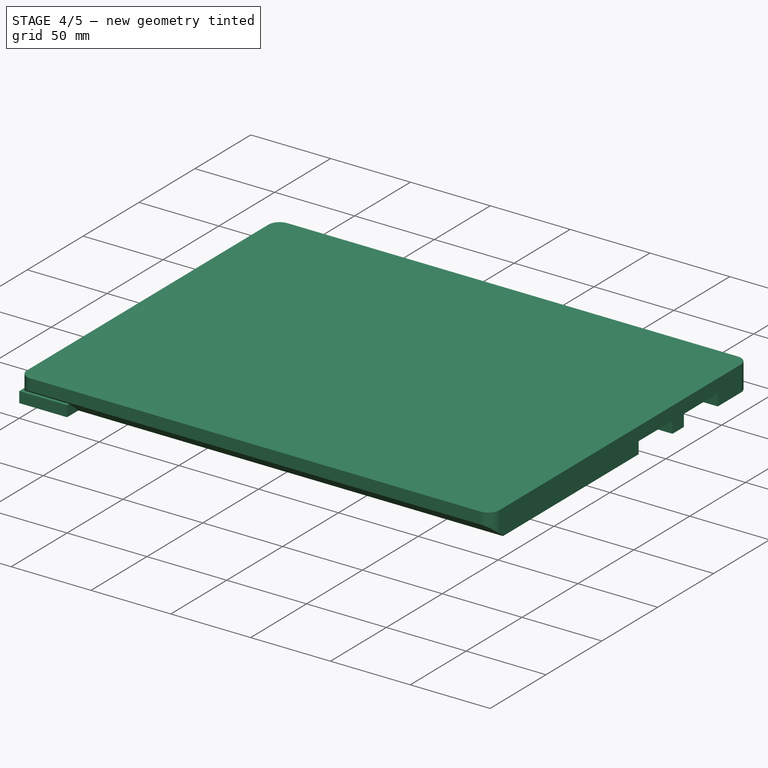
[diagram: stage 4 of 5 — iso view after this stage's code; geometry added in this stage tinted green]
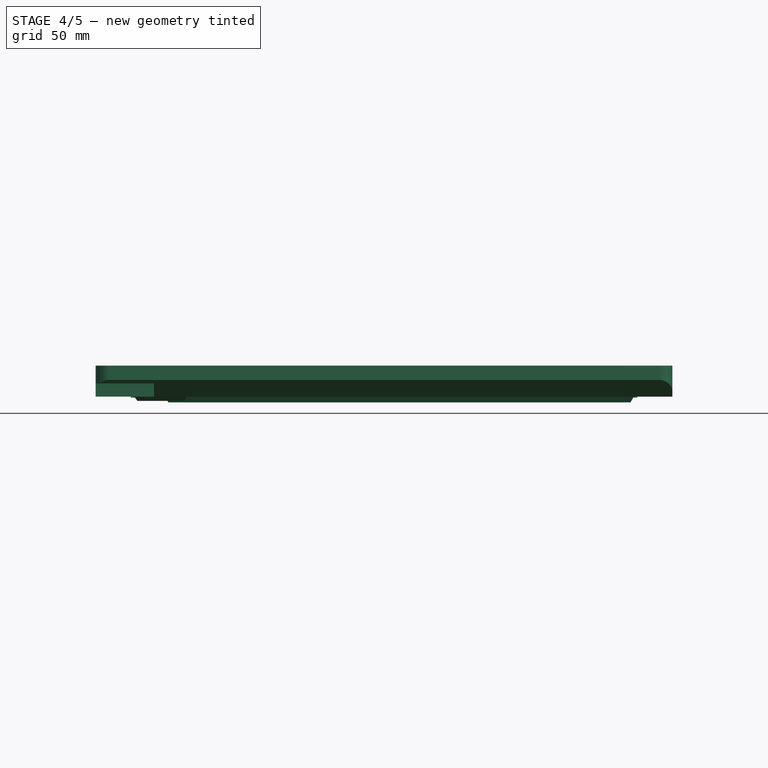
[diagram: stage 4 of 5 — front view after this stage's code; geometry added in this stage tinted green]
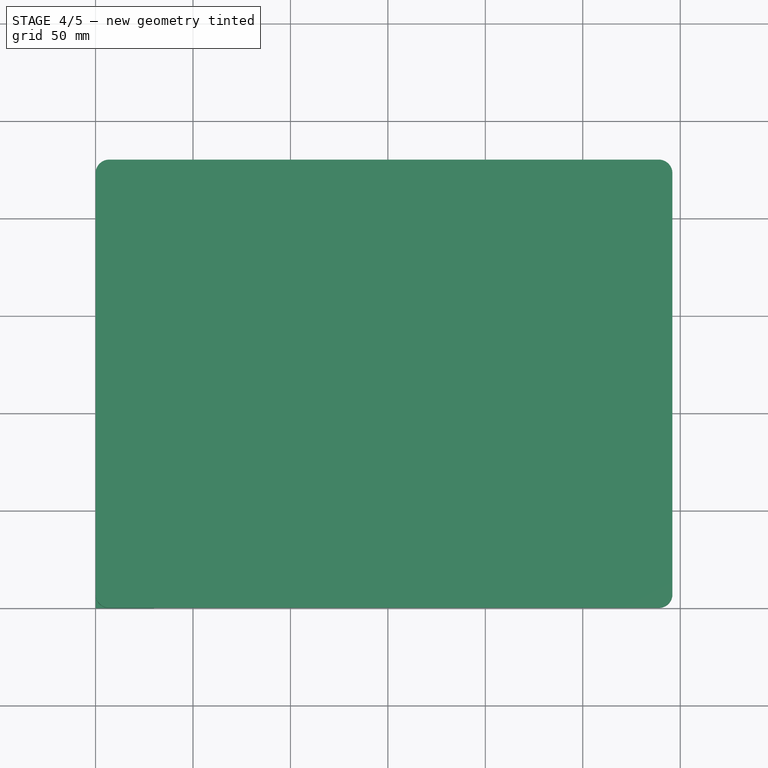
[diagram: stage 4 of 5 — top view after this stage's code; geometry added in this stage tinted green]
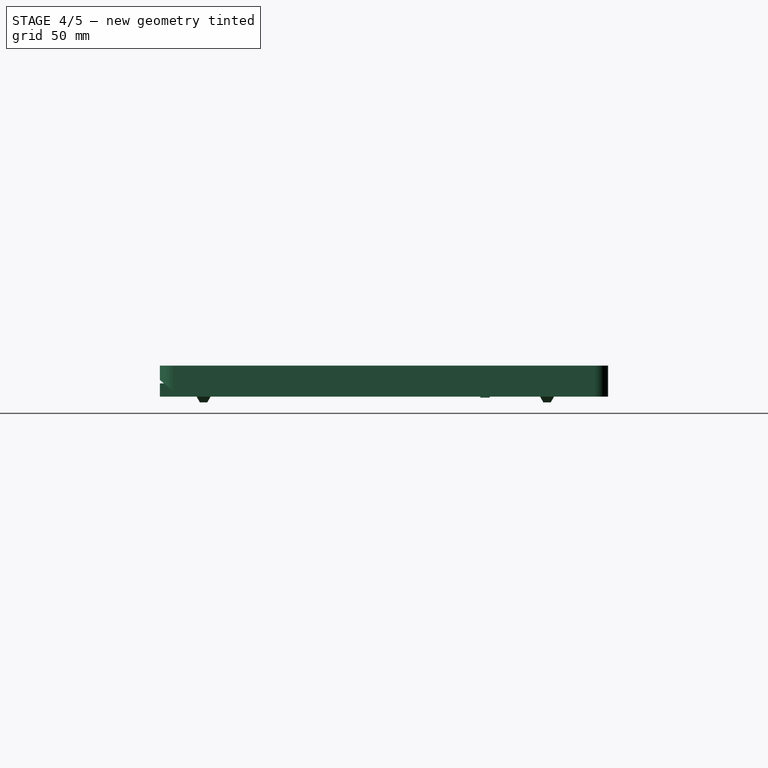
[diagram: stage 4 of 5 — right view after this stage's code; geometry added in this stage tinted green]
FEATURE [Sketcher::SketchObject] Sketch013
  FullyConstrained = true
  MapMode = 5
  Support = -> [XY_Plane003]
  sketch-geometry (4):
    g0: LineSegment StartX=0 StartY=0 StartZ=0 EndX=30 EndY=0 EndZ=0
    g1: LineSegment StartX=30 StartY=0 StartZ=0 EndX=30 EndY=32 EndZ=0
    g2: LineSegment StartX=30 StartY=32 StartZ=0 EndX=0 EndY=32 EndZ=0
    g3: LineSegment StartX=0 StartY=32 StartZ=0 EndX=0 EndY=0 EndZ=0
  constraints (11):
    c: Coincident(g0,g1)
    c: Coincident(g1,g2)
    c: Coincident(g2,g3)
    c: Coincident(g3,g0)
    c: Horizontal(g0)
    c: Horizontal(g2)
    c: Vertical(g1)
    c: Vertical(g3)
    c: Coincident(g0,g-1)
    c: DistanceX(g0,g0) = 30
    c: DistanceY(g1,g1) = 32
FEATURE [PartDesign::Pad] Pad003
  Direction = (0,0,1)
  Length = 6.8
  Length2 = 10
  Profile = -> Sketch013
  ReferenceAxis = -> Sketch013 [N_Axis]
  Type = 0
FEATURE [PartDesign::Body] Body003  label="Expansion card 1"
  Group = -> [Sketch013,Pad003,Sketch014,Pocket003]
  Origin = -> Origin003
  Placement = pos=(0,172.1,6.8) rot=(0.707107,0.707107,0;3.14159rad)
  Tip = -> Pocket003
FEATURE [Sketcher::SketchObject] Sketch015
  FullyConstrained = true
  MapMode = 5
  Support = -> [XY_Plane004]
  sketch-geometry (4):
    g0: LineSegment StartX=0 StartY=0 StartZ=0 EndX=30 EndY=0 EndZ=0
    g1: LineSegment StartX=30 StartY=0 StartZ=0 EndX=30 EndY=32 EndZ=0
    g2: LineSegment StartX=30 StartY=32 StartZ=0 EndX=0 EndY=32 EndZ=0
    g3: LineSegment StartX=0 StartY=32 StartZ=0 EndX=0 EndY=0 EndZ=0
  constraints (11):
    c: Coincident(g0,g1)
    c: Coincident(g1,g2)
    c: Coincident(g2,g3)
    c: Coincident(g3,g0)
    c: Horizontal(g0)
    c: Horizontal(g2)
    c: Vertical(g1)
    c: Vertical(g3)
    c: Coincident(g0,g-1)
    c: DistanceX(g0,g0) = 30
    c: DistanceY(g1,g1) = 32
FEATURE [PartDesign::Pad] Pad004
  Direction = (0,0,1)
  Length = 6.8
  Length2 = 10
  Profile = -> Sketch015
  ReferenceAxis = -> Sketch015 [N_Axis]
  Type = 0
FEATURE [Sketcher::SketchObject] Sketch016
  ExternalGeometry = -> [Pad004]
  FullyConstrained = true
  MapMode = 5
  Placement = pos=(0,0,6.8) rot=(0,0,1;0rad)
  Support = -> [Pad004]
  sketch-geometry (4):
    g0: LineSegment StartX=0 StartY=28.5 StartZ=0 EndX=30 EndY=28.5 EndZ=0
    g1: LineSegment StartX=0 StartY=28.5 StartZ=0 EndX=0 EndY=32 EndZ=0
    g2: LineSegment StartX=30 StartY=32 StartZ=0 EndX=30 EndY=28.5 EndZ=0
    g3: LineSegment StartX=0 StartY=32 StartZ=0 EndX=30 EndY=32 EndZ=0
  constraints (10):
    c: PointOnObject(g0,g-2)
    c: PointOnObject(g0,g-3)
    c: Horizontal(g0)
    c: DistanceY(g0,g-4) = 3.5
    c: Coincident(g1,g0)
    c: Coincident(g1,g-4)
    c: Coincident(g2,g-4)
    c: Coincident(g2,g0)
    c: Coincident(g3,g1)
    c: Coincident(g3,g2)
FEATURE [PartDesign::Pocket] Pocket004
  BaseFeature = -> Pad004
  Direction = (0,0,-1)
  Length = 0.6
  Length2 = 5
  Profile = -> Sketch016
  ReferenceAxis = -> Sketch016 [N_Axis]
  Type = 0
FEATURE [Sketcher::SketchObject] Sketch018
  ExternalGeometry = -> [Pad005]
  FullyConstrained = true
  MapMode = 5
  Placement = pos=(0,0,6.8) rot=(0,0,1;0rad)
  Support = -> [Pad005]
  sketch-geometry (4):
    g0: LineSegment StartX=0 StartY=28.5 StartZ=0 EndX=30 EndY=28.5 EndZ=0
    g1: LineSegment StartX=0 StartY=28.5 StartZ=0 EndX=0 EndY=32 EndZ=0
    g2: LineSegment StartX=30 StartY=32 StartZ=0 EndX=30 EndY=28.5 EndZ=0
    g3: LineSegment StartX=0 StartY=32 StartZ=0 EndX=30 EndY=32 EndZ=0
  constraints (10):
    c: PointOnObject(g0,g-2)
    c: PointOnObject(g0,g-3)
    c: Horizontal(g0)
    c: DistanceY(g0,g-4) = 3.5
    c: Coincident(g1,g0)
    c: Coincident(g1,g-4)
    c: Coincident(g2,g-4)
    c: Coincident(g2,g0)
    c: Coincident(g3,g1)
    c: Coincident(g3,g2)
FEATURE [PartDesign::Pocket] Pocket005
  BaseFeature = -> Pad005
  Direction = (0,0,-1)
  Length = 0.6
  Length2 = 5
  Profile = -> Sketch018
  ReferenceAxis = -> Sketch018 [N_Axis]
  Type = 0
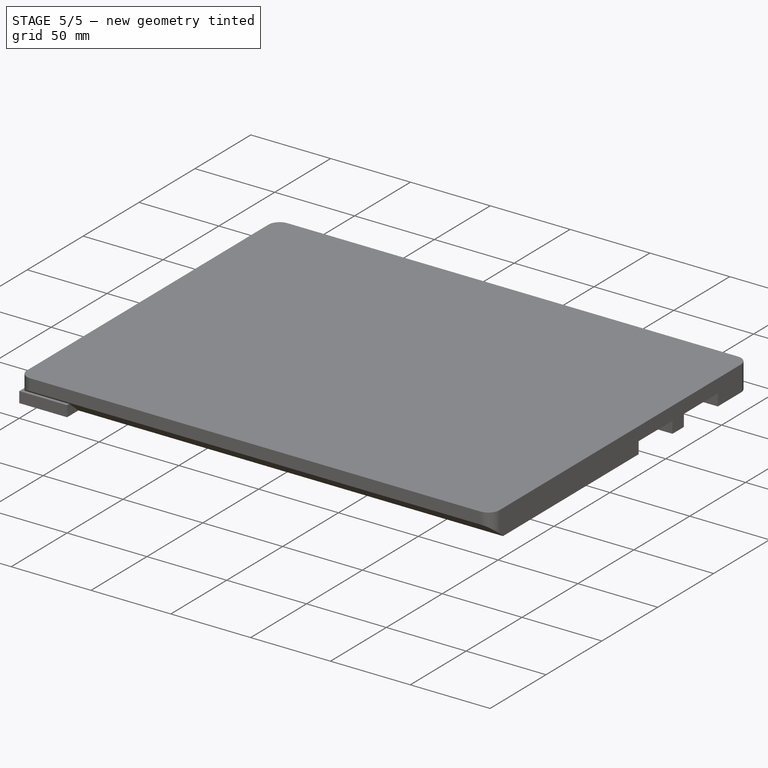
[diagram: stage 5 of 5 — iso view after this stage's code; geometry added in this stage tinted green]
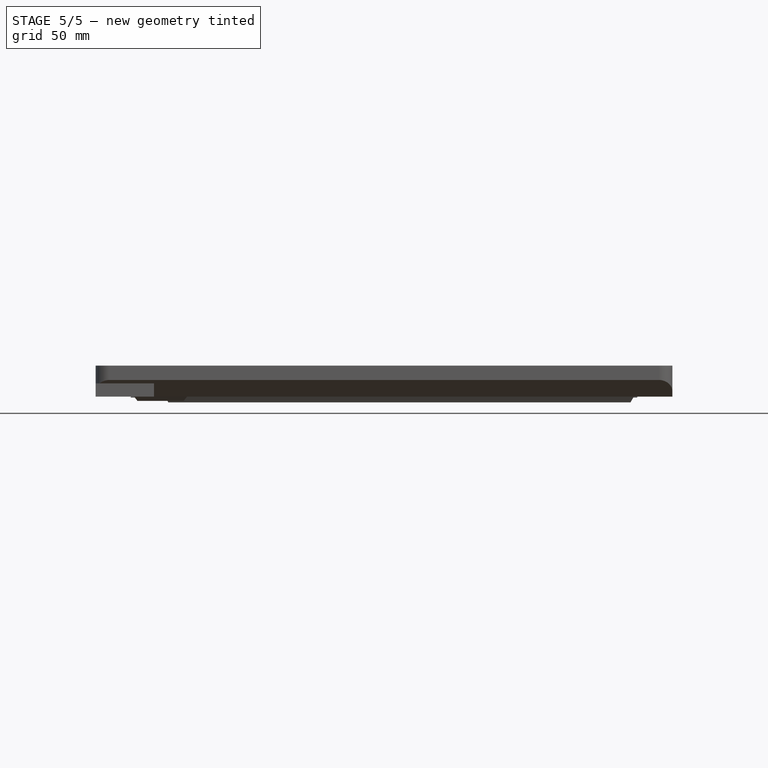
[diagram: stage 5 of 5 — front view after this stage's code; geometry added in this stage tinted green]
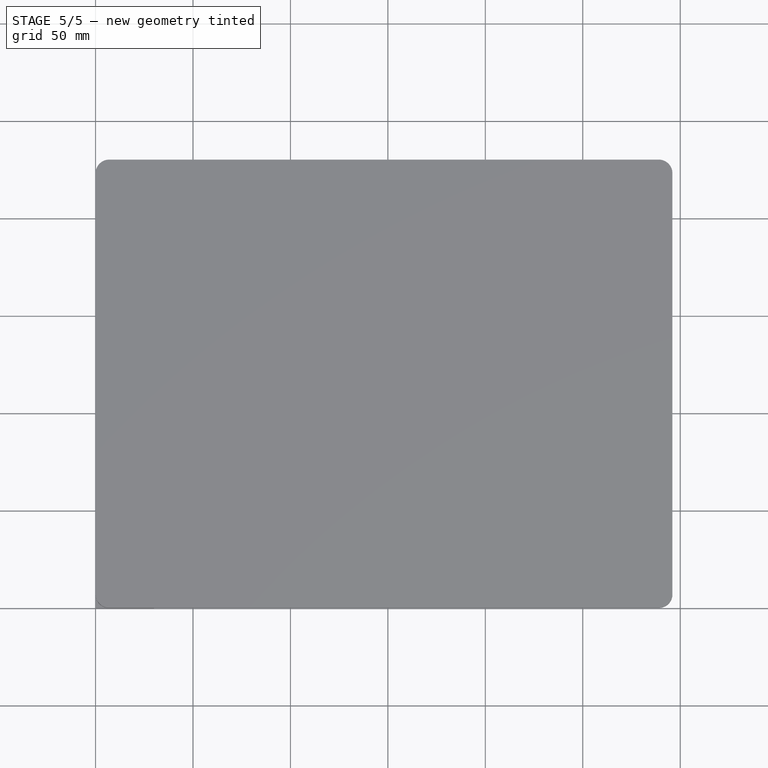
[diagram: stage 5 of 5 — top view after this stage's code; geometry added in this stage tinted green]
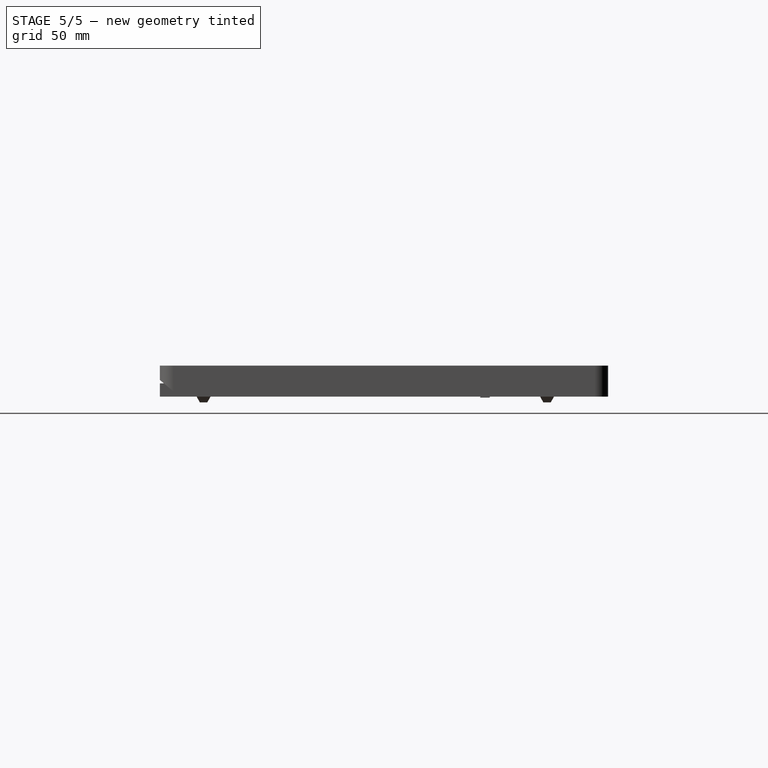
[diagram: stage 5 of 5 — right view after this stage's code; geometry added in this stage tinted green]
FEATURE [Sketcher::SketchObject] Sketch008
  AttachmentOffset = pos=(0,0,15.88) rot=(0,0,1;0rad)
  FullyConstrained = true
  MapMode = 5
  Placement = pos=(0,0,15.88) rot=(0,0,1;0rad)
  Support = -> [XY_Plane001]
  sketch-geometry (4):
    g0: LineSegment StartX=0 StartY=0 StartZ=0 EndX=296 EndY=0 EndZ=0
    g1: LineSegment StartX=296 StartY=0 StartZ=0 EndX=296 EndY=230 EndZ=0
    g2: LineSegment StartX=296 StartY=230 StartZ=0 EndX=0 EndY=230 EndZ=0
    g3: LineSegment StartX=0 StartY=230 StartZ=0 EndX=0 EndY=0 EndZ=0
  constraints (11):
    c: Coincident(g0,g1)
    c: Coincident(g1,g2)
    c: Coincident(g2,g3)
    c: Coincident(g3,g0)
    c: Horizontal(g0)
    c: Horizontal(g2)
    c: Vertical(g1)
    c: Vertical(g3)
    c: Coincident(g0,g-1)
    c: DistanceX(g2,g2) = 296
    c: DistanceY(g1,g1) = 230
FEATURE [PartDesign::Pad] Pad001
  Direction = (0,0,1)
  Length = 3.35
  Length2 = 10
  Profile = -> Sketch008
  ReferenceAxis = -> Sketch008 [N_Axis]
  Reversed = true
  Type = 0
FEATURE [PartDesign::Fillet] Fillet001
  Base = -> Pad001 [Edge5,Edge8,Edge1,Edge2]
  BaseFeature = -> Pad001
  Radius = 7
  SupportTransform = false
  UseAllEdges = false
FEATURE [PartDesign::Body] Body001  label="Lid"
  Group = -> [Sketch008,Pad001,Fillet001]
  Origin = -> Origin001
  Tip = -> Fillet001
FEATURE [Sketcher::SketchObject] Sketch009
  AttachmentOffset = pos=(0,0,12.53) rot=(0,0,1;0rad)
  FullyConstrained = true
  MapMode = 5
  Placement = pos=(0,0,12.53) rot=(0,0,1;0rad)
  Support = -> [XY_Plane002]
  expr: .AttachmentOffset.Base.z = 15.88 - 3.35
  sketch-geometry (4):
    g0: LineSegment StartX=0 StartY=0 StartZ=0 EndX=296 EndY=0 EndZ=0
    g1: LineSegment StartX=296 StartY=0 StartZ=0 EndX=296 EndY=230 EndZ=0
    g2: LineSegment StartX=296 StartY=230 StartZ=0 EndX=0 EndY=230 EndZ=0
    g3: LineSegment StartX=0 StartY=230 StartZ=0 EndX=0 EndY=0 EndZ=0
  constraints (11):
    c: Coincident(g0,g1)
    c: Coincident(g1,g2)
    c: Coincident(g2,g3)
    c: Coincident(g3,g0)
    c: Horizontal(g0)
    c: Horizontal(g2)
    c: Vertical(g1)
    c: Vertical(g3)
    c: Coincident(g0,g-1)
    c: DistanceX(g0,g0) = 296
    c: DistanceY(g1,g1) = 230
FEATURE [PartDesign::Pad] Pad002
  Direction = (0,0,1)
  Length = 1.78
  Length2 = 10
  Profile = -> Sketch009
  ReferenceAxis = -> Sketch009 [N_Axis]
  Reversed = true
  Type = 0
FEATURE [PartDesign::Fillet] Fillet002
  Base = -> Pad002 [Edge5,Edge8,Edge1,Edge2]
  BaseFeature = -> Pad002
  Radius = 7
  SupportTransform = false
  UseAllEdges = false
FEATURE [Sketcher::SketchObject] Sketch014
  ExternalGeometry = -> [Pad003]
  FullyConstrained = true
  MapMode = 5
  Placement = pos=(0,0,6.8) rot=(0,0,1;0rad)
  Support = -> [Pad003]
  sketch-geometry (4):
    g0: LineSegment StartX=0 StartY=28.5 StartZ=0 EndX=30 EndY=28.5 EndZ=0
    g1: LineSegment StartX=0 StartY=28.5 StartZ=0 EndX=0 EndY=32 EndZ=0
    g2: LineSegment StartX=30 StartY=32 StartZ=0 EndX=30 EndY=28.5 EndZ=0
    g3: LineSegment StartX=0 StartY=32 StartZ=0 EndX=30 EndY=32 EndZ=0
  constraints (10):
    c: PointOnObject(g0,g-2)
    c: PointOnObject(g0,g-3)
    c: Horizontal(g0)
    c: DistanceY(g0,g-4) = 3.5
    c: Coincident(g1,g0)
    c: Coincident(g1,g-4)
    c: Coincident(g2,g-4)
    c: Coincident(g2,g0)
    c: Coincident(g3,g1)
    c: Coincident(g3,g2)
FEATURE [PartDesign::Pocket] Pocket003
  BaseFeature = -> Pad003
  Direction = (0,0,-1)
  Length = 0.6
  Length2 = 5
  Profile = -> Sketch014
  ReferenceAxis = -> Sketch014 [N_Axis]
  Type = 0
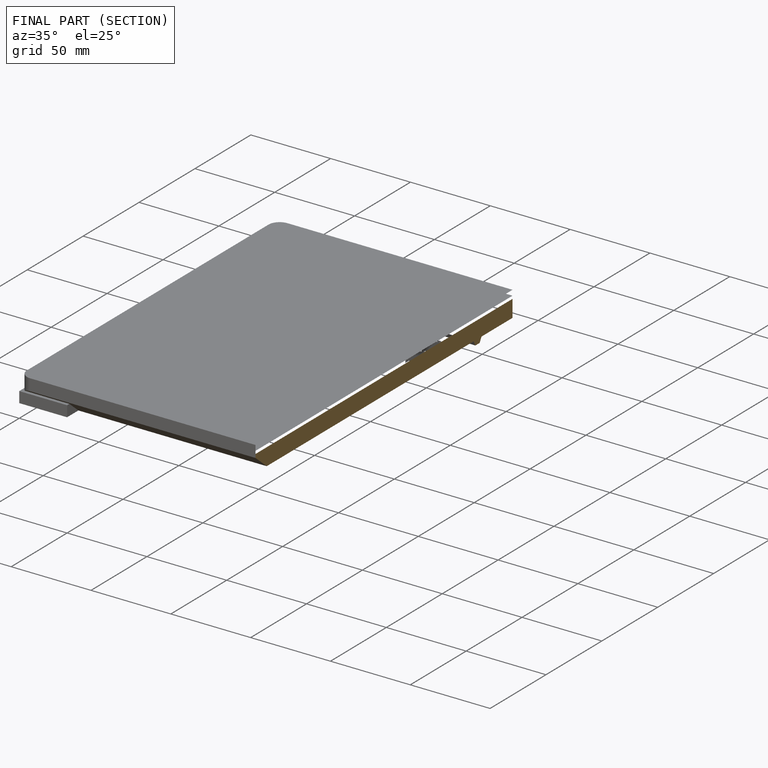
[diagram: finished part — half-section view (interior)]
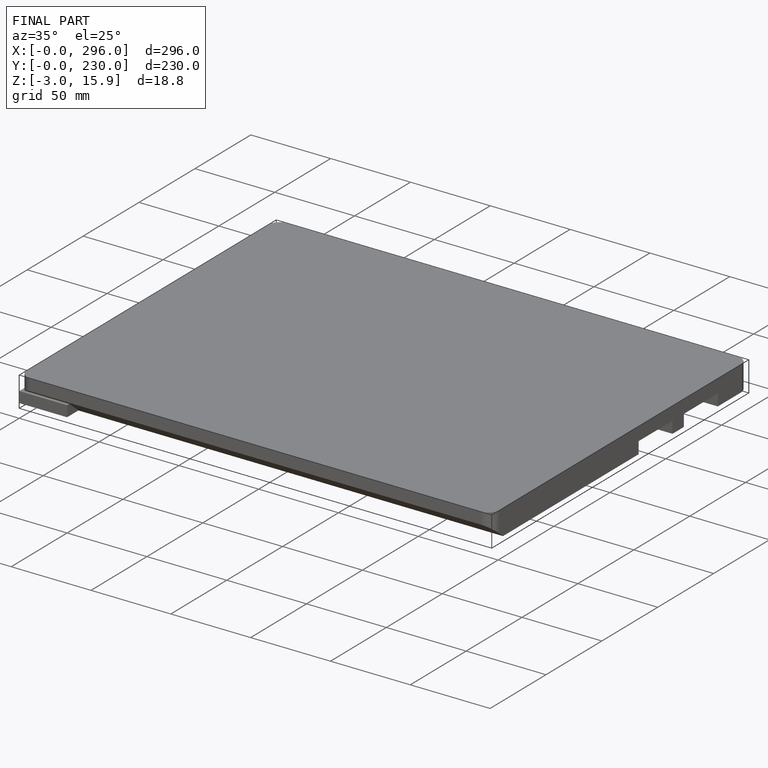
[diagram: finished part — iso view with bounding-box wireframe]
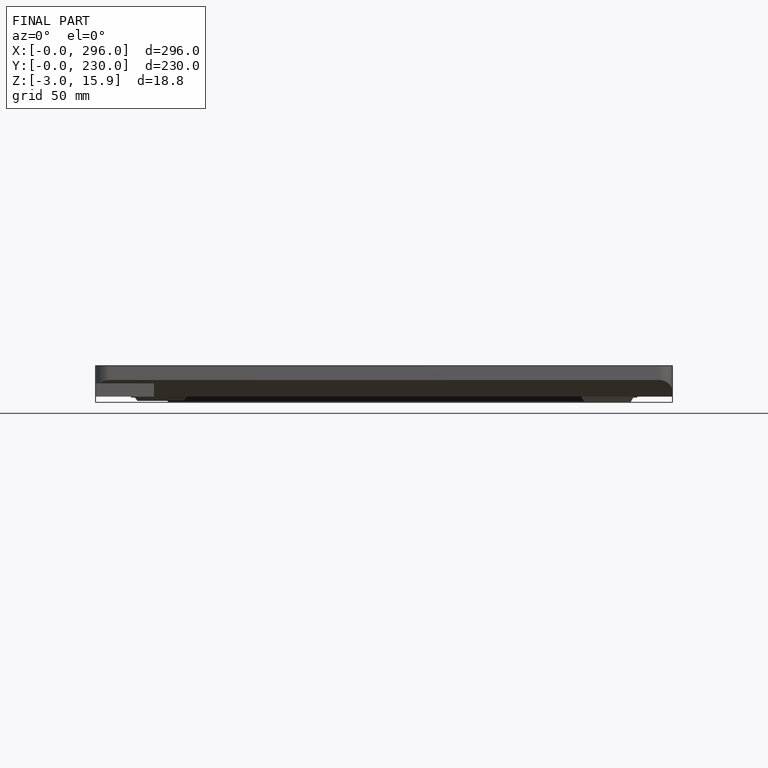
[diagram: finished part — front view with bounding-box wireframe]
